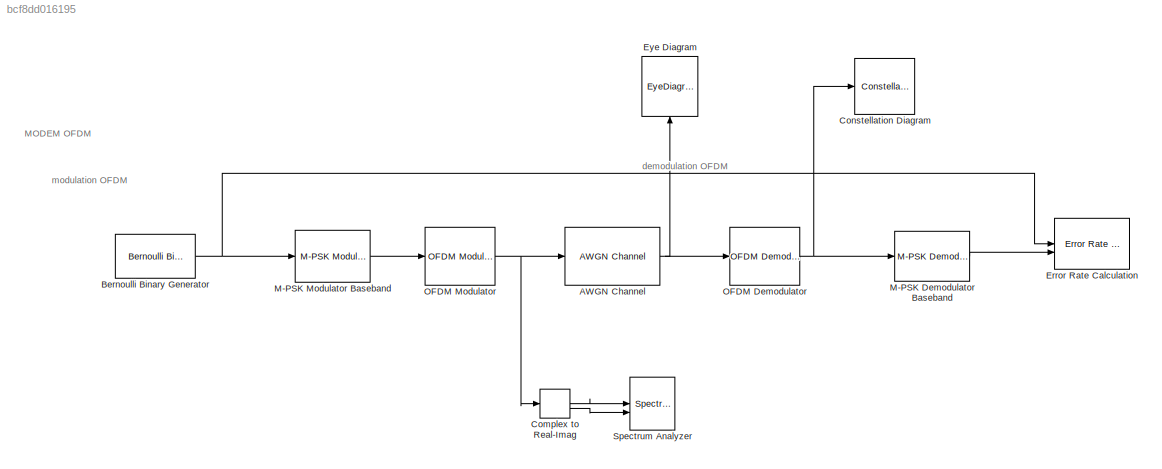
MODEL slx_bcf8dd016195
KIND model
CONFIG AbsTol = auto
CONFIG EnableMultiTasking = off
CONFIG FixedStep = auto
CONFIG MaxStep = auto
CONFIG MinStep = auto
CONFIG RelTol = 1e-3
CONFIG SampleTimeConstraint = Unconstrained
CONFIG SolverName = VariableStepAuto
CONFIG StartTime = 0.0
CONFIG StopTime = 100000
BLOCK [Reference] AWGN Channel  REF=commchan3/AWGN
Channel
  SourceBlock = commchan3/AWGN\nChannel
  SourceType = AWGN Channel
  UserDataPersistent = on
BLOCK [Reference] Bernoulli Binary Generator  REF=commrandsrc3/Bernoulli Binary
Generator
  SourceBlock = commrandsrc3/Bernoulli Binary\nGenerator
  SourceType = Bernoulli Binary Generator
BLOCK [ComplexToRealImag] Complex to Real-Imag
BLOCK [ConstellationDiagram] Constellation Diagram
  DefaultConfigurationName = comm.scopes.ConstellationDiagramBlockCfg
  GraphicalSettings = {"Style":{"BackgroundColor":[0.8,0.8,0.8],"AxesColor":[1,1,1],"LabelsColor":[0.14901960784313725,0.14901960784313725,0.14901960784313725],"LineStyle":["NONE","NONE"],"LineColor":[[0,0,1],[1,0,0]],"LineWidth":[1,1],"Marker":[".","+"],"IsRefLine":[false,true],"FontSize":"small"}}
  ScopeFrameLocation = window
  ScopeSpecificationString = comm.scopes.ConstellationDiagramBlockCfg('CurrentConfiguration', extmgr.ConfigurationSet(extmgr.Configuration('Tools','Measurements',true),extmgr.Configuration('Core','General UI',true,'ShowNewAction',false,'ShowLoadConfigSet',false,'ShowSaveConfigSet',false,'FigureColor',[0.156862745098039 0.156862745098039 0.156862745098039]),extmgr.Configuration('Tools','Plot Navigation',true,'XDataDisplay',80,...<+365ch>
  SymbolsToDisplay = 200
  SymbolsToDisplaySource = Property
  Visible = on
  WasSavedAsWebScope = on
  WindowPosition = [170.000000,87.000000,600.000000,600.000000,]
  XLimits = [-1.46,1.46]
  YLimits = [-1.38,1.38]
BLOCK [Reference] Error Rate Calculation  REF=commsink2/Error Rate
Calculation
  SourceBlock = commsink2/Error Rate\nCalculation
  SourceType = Error Rate Calculation
BLOCK [EyeDiagram] Eye Diagram
  NameLocation = right
  ScopeSpecificationString = comm.scopes.EyeDiagramBlockCfg('CurrentConfiguration', extmgr.ConfigurationSet(extmgr.Configuration('Core','General UI',true),extmgr.Configuration('Core','Source UI',true),extmgr.Configuration('Sources','WiredSimulink',true),extmgr.Configuration('Sources','Simulink',false),extmgr.Configuration('Sources','File',false),extmgr.Configuration('Sources','Workspace',false),extmgr.Configuration('Sources',...<+1743ch>
BLOCK [Reference] M-PSK Demodulator Baseband  REF=commdigbbndpm3/M-PSK
Demodulator
Baseband
  SourceBlock = commdigbbndpm3/M-PSK\nDemodulator\nBaseband
  SourceType = M-PSK Demodulator Baseband
BLOCK [Reference] M-PSK Modulator Baseband  REF=commdigbbndpm3/M-PSK
Modulator
Baseband
  SourceBlock = commdigbbndpm3/M-PSK\nModulator\nBaseband
  SourceType = M-PSK Modulator Baseband
BLOCK [Reference] OFDM Demodulator  REF=commofdm/OFDM Demodulator
  SourceBlock = commofdm/OFDM Demodulator
  SourceType = OFDM Demodulator
BLOCK [Reference] OFDM Modulator  REF=commofdm/OFDM Modulator
  SourceBlock = commofdm/OFDM Modulator
  SourceType = OFDM Modulator
BLOCK [SpectrumAnalyzer] Spectrum Analyzer
  NumInputPorts = 2
  ScopeSpecificationString = spbscopes.SpectrumAnalyzerBlockCfg('CurrentConfiguration', extmgr.ConfigurationSet(extmgr.Configuration('Core','General UI',true,'FigureColor',[0.831372549019608 0.815686274509804 0.784313725490196]),extmgr.Configuration('Core','Source UI',true),extmgr.Configuration('Sources','WiredSimulink',true),extmgr.Configuration('Visuals','Spectrum',true,'AxesProperties',struct('Color',{[1 1 1],[1 1 1]},'XCo...<+1982ch>
ANNOTATION (root): MODEM OFDM
ANNOTATION (root): demodulation OFDM
ANNOTATION (root): modulation OFDM
NET AWGN Channel:1 -> Eye Diagram:1, OFDM Demodulator:1
NET Bernoulli Binary Generator:1 -> Error Rate Calculation:1, M-PSK Modulator Baseband:1
LINE Complex to Real-Imag:1 -> Spectrum Analyzer:1
LINE Complex to Real-Imag:2 -> Spectrum Analyzer:2
LINE M-PSK Demodulator Baseband:1 -> Error Rate Calculation:2
LINE M-PSK Modulator Baseband:1 -> OFDM Modulator:1
NET OFDM Demodulator:1 -> Constellation Diagram:1, M-PSK Demodulator Baseband:1
NET OFDM Modulator:1 -> AWGN Channel:1, Complex to Real-Imag:1
note: NET lines group one-source signal fan-out (src -> all destinations, sorted); 1:1 wires keep LINE
